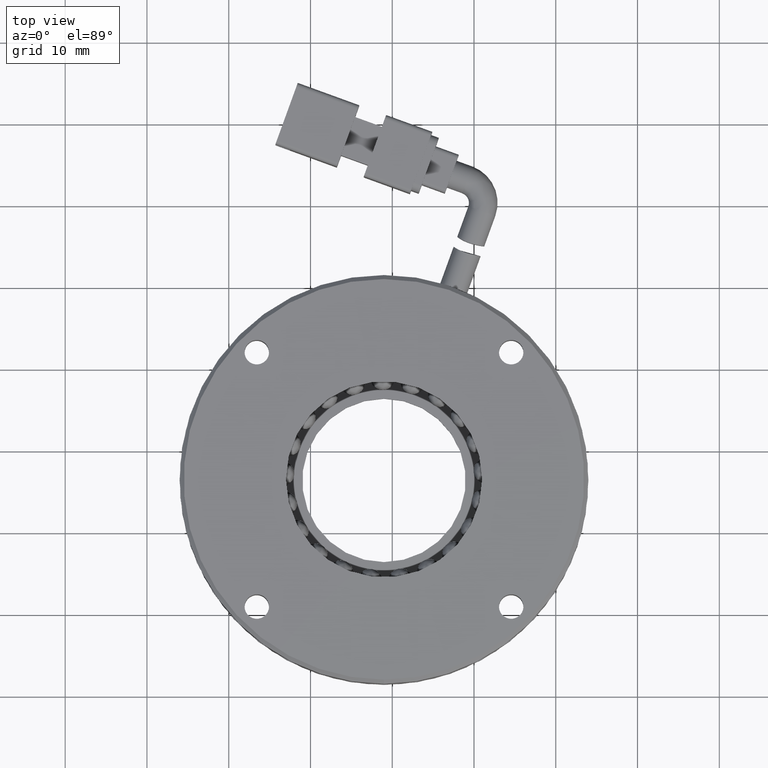
[diagram: clean part render]
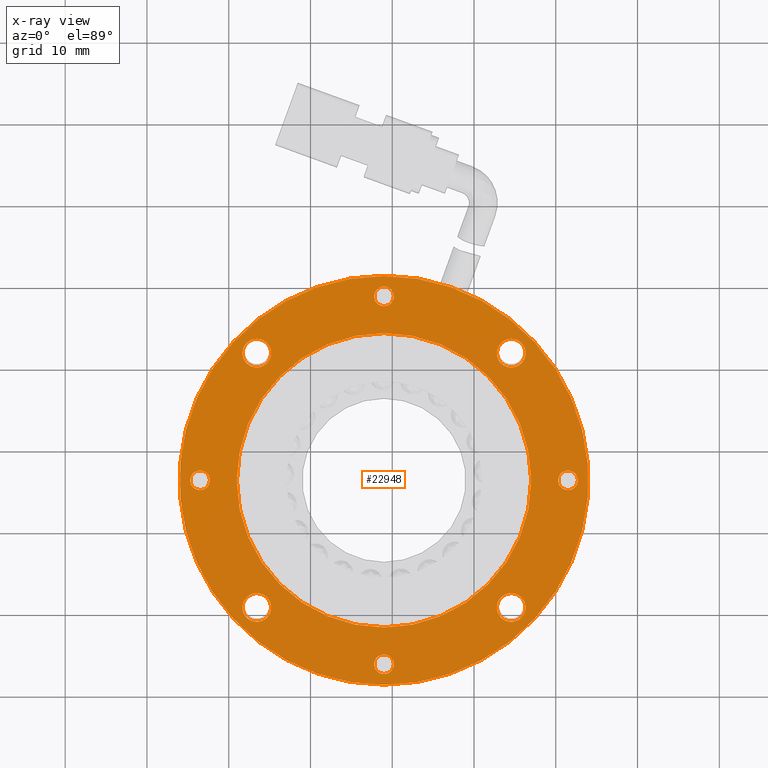
[diagram: x-ray — body ghosted, one internal face saturated and labeled with its STEP entity id]
A machine part, top view, then the same camera in x-ray: the body is ghosted and one INTERNAL B-rep face — a face not visible from any outside direction — is saturated and labeled: STEP entity #22948.
In plain terms, the highlighted planar face has unit normal (-0, -0, -1).
Its self-contained STEP definition (entity closure, byte-faithful):
#7 = AXIS2_PLACEMENT_3D ( 'NONE', #7676, #21975, #9746 ) ;
#12 = CARTESIAN_POINT ( 'NONE',  ( -121.0083944312394000, 24.46072502546472900, -3.499999999999940500 ) ) ;
#293 = CIRCLE ( 'NONE', #1928, 1.199999999999999700 ) ;
#441 = ORIENTED_EDGE ( 'NONE', *, *, #7144, .T. ) ;
#459 = CIRCLE ( 'NONE', #9071, 18.00000000000000400 ) ;
#812 = ORIENTED_EDGE ( 'NONE', *, *, #16583, .F. ) ;
#1020 = DIRECTION ( 'NONE',  ( 0.0000000000000000000, -1.000000000000000000, 0.0000000000000000000 ) ) ;
#1303 = CARTESIAN_POINT ( 'NONE',  ( -105.4520452451353800, 23.76707421156879700, -3.499999999999940500 ) ) ;
#1307 = VERTEX_POINT ( 'NONE', #17881 ) ;
#1319 = AXIS2_PLACEMENT_3D ( 'NONE', #7426, #21725, #9500 ) ;
#1321 = DIRECTION ( 'NONE',  ( 0.0000000000000000000, -1.000000000000000000, 0.0000000000000000000 ) ) ;
#1618 = VERTEX_POINT ( 'NONE', #9821 ) ;
#1740 = DIRECTION ( 'NONE',  ( 0.0000000000000000000, 1.000000000000000000, 0.0000000000000000000 ) ) ;
#1784 = CARTESIAN_POINT ( 'NONE',  ( -98.50839443123941000, 6.460725025464729900, -3.499999999999940500 ) ) ;
#1928 = AXIS2_PLACEMENT_3D ( 'NONE', #7444, #21747, #9518 ) ;
#1969 = CIRCLE ( 'NONE', #7, 25.00000000000000000 ) ;
#2053 = EDGE_LOOP ( 'NONE', ( #20877, #14480 ) ) ;
#2296 = EDGE_CURVE ( 'NONE', #6339, #21895, #19026, .T. ) ;
#2335 = ORIENTED_EDGE ( 'NONE', *, *, #4447, .T. ) ;
#2577 = CARTESIAN_POINT ( 'NONE',  ( -121.0083944312394000, 31.46072502546472900, -3.499999999999940500 ) ) ;
#2711 = CARTESIAN_POINT ( 'NONE',  ( -121.0083944312391500, -17.23927497453527000, -3.499999999999940500 ) ) ;
#2746 = CARTESIAN_POINT ( 'NONE',  ( -121.0083944312391500, -14.83927497453527200, -3.499999999999940500 ) ) ;
#3174 = CARTESIAN_POINT ( 'NONE',  ( -136.5647436173433100, -7.345624160639461700, -3.499999999999940500 ) ) ;
#3476 = CIRCLE ( 'NONE', #3803, 1.749999999999992900 ) ;
#3541 = CARTESIAN_POINT ( 'NONE',  ( -121.0083944312394800, 30.16072502546472100, -3.499999999999940500 ) ) ;
#3653 = EDGE_LOOP ( 'NONE', ( #10954, #2335 ) ) ;
#3803 = AXIS2_PLACEMENT_3D ( 'NONE', #6815, #21090, #8898 ) ;
#3845 = DIRECTION ( 'NONE',  ( 0.0000000000000000000, 1.000000000000000000, 0.0000000000000000000 ) ) ;
#3968 = CARTESIAN_POINT ( 'NONE',  ( -136.5647436173435400, 22.01707421156869400, -3.499999999999940500 ) ) ;
#3992 = FACE_BOUND ( 'NONE', #24982, .T. ) ;
#4067 = VERTEX_POINT ( 'NONE', #25816 ) ;
#4083 = CIRCLE ( 'NONE', #1319, 1.199999999999999700 ) ;
#4150 = EDGE_CURVE ( 'NONE', #8919, #11354, #8638, .T. ) ;
#4375 = DIRECTION ( 'NONE',  ( -1.278084676573917400E-047, 0.0000000000000000000, -1.000000000000000000 ) ) ;
#4447 = EDGE_CURVE ( 'NONE', #4067, #10572, #13060, .T. ) ;
#4558 = ORIENTED_EDGE ( 'NONE', *, *, #23065, .T. ) ;
#4902 = CARTESIAN_POINT ( 'NONE',  ( -121.0083944312391500, -16.03927497453527100, -3.499999999999940500 ) ) ;
#5226 = EDGE_LOOP ( 'NONE', ( #441, #5337 ) ) ;
#5332 = DIRECTION ( 'NONE',  ( -1.278084676573917400E-047, 0.0000000000000000000, -1.000000000000000000 ) ) ;
#5337 = ORIENTED_EDGE ( 'NONE', *, *, #20351, .T. ) ;
#5527 = AXIS2_PLACEMENT_3D ( 'NONE', #10043, #24308, #12096 ) ;
#5631 = AXIS2_PLACEMENT_3D ( 'NONE', #3968, #18232, #6034 ) ;
#5885 = EDGE_LOOP ( 'NONE', ( #8750, #24013 ) ) ;
#5925 = AXIS2_PLACEMENT_3D ( 'NONE', #24178, #11980, #26198 ) ;
#5954 = CARTESIAN_POINT ( 'NONE',  ( -136.5647436173435400, 22.01707421156869400, -3.499999999999940500 ) ) ;
#6034 = DIRECTION ( 'NONE',  ( 0.0000000000000000000, 1.000000000000000000, 0.0000000000000000000 ) ) ;
#6282 = EDGE_CURVE ( 'NONE', #10572, #4067, #14946, .T. ) ;
#6339 = VERTEX_POINT ( 'NONE', #1303 ) ;
#6508 = AXIS2_PLACEMENT_3D ( 'NONE', #4902, #19192, #6940 ) ;
#6815 = CARTESIAN_POINT ( 'NONE',  ( -105.4520452451351500, -9.095624160639122400, -3.499999999999940500 ) ) ;
#6940 = DIRECTION ( 'NONE',  ( 0.0000000000000000000, 1.000000000000000000, 0.0000000000000000000 ) ) ;
#7037 = VERTEX_POINT ( 'NONE', #12 ) ;
#7093 = VERTEX_POINT ( 'NONE', #22586 ) ;
#7144 = EDGE_CURVE ( 'NONE', #9882, #19770, #15220, .T. ) ;
#7150 = EDGE_LOOP ( 'NONE', ( #18600, #14754 ) ) ;
#7239 = EDGE_CURVE ( 'NONE', #13886, #18966, #11693, .T. ) ;
#7426 = CARTESIAN_POINT ( 'NONE',  ( -121.0083944312391500, -16.03927497453527100, -3.499999999999940500 ) ) ;
#7437 = EDGE_LOOP ( 'NONE', ( #11168, #25297 ) ) ;
#7444 = CARTESIAN_POINT ( 'NONE',  ( -121.0083944312394800, 28.96072502546472200, -3.499999999999940500 ) ) ;
#7544 = ORIENTED_EDGE ( 'NONE', *, *, #23631, .T. ) ;
#7676 = CARTESIAN_POINT ( 'NONE',  ( -121.0083944312394000, 6.460725025464729900, -3.499999999999940500 ) ) ;
#7725 = AXIS2_PLACEMENT_3D ( 'NONE', #5954, #20222, #8003 ) ;
#8003 = DIRECTION ( 'NONE',  ( 0.0000000000000000000, 1.000000000000000000, 0.0000000000000000000 ) ) ;
#8013 = VERTEX_POINT ( 'NONE', #8745 ) ;
#8049 = EDGE_CURVE ( 'NONE', #7093, #19529, #16728, .T. ) ;
#8183 = CARTESIAN_POINT ( 'NONE',  ( -121.0083944312394800, 27.76072502546471900, -3.499999999999940500 ) ) ;
#8456 = VERTEX_POINT ( 'NONE', #8183 ) ;
#8638 = CIRCLE ( 'NONE', #10253, 25.00000000000000000 ) ;
#8745 = CARTESIAN_POINT ( 'NONE',  ( -105.4520452451351500, -10.84562416063911500, -3.499999999999940500 ) ) ;
#8750 = ORIENTED_EDGE ( 'NONE', *, *, #22423, .T. ) ;
#8898 = DIRECTION ( 'NONE',  ( 0.0000000000000000000, 1.000000000000000000, 0.0000000000000000000 ) ) ;
#8919 = VERTEX_POINT ( 'NONE', #24743 ) ;
#8927 = DIRECTION ( 'NONE',  ( -1.278084676573917700E-047, -7.983674700015282600E-110, -1.000000000000000000 ) ) ;
#9071 = AXIS2_PLACEMENT_3D ( 'NONE', #25721, #13562, #1321 ) ;
#9186 = DIRECTION ( 'NONE',  ( -1.278084676573917400E-047, 0.0000000000000000000, -1.000000000000000000 ) ) ;
#9353 = CARTESIAN_POINT ( 'NONE',  ( -136.5647436173433100, -9.095624160639456300, -3.499999999999940500 ) ) ;
#9418 = FACE_BOUND ( 'NONE', #20887, .T. ) ;
#9500 = DIRECTION ( 'NONE',  ( 0.0000000000000000000, 1.000000000000000000, 0.0000000000000000000 ) ) ;
#9518 = DIRECTION ( 'NONE',  ( 0.0000000000000000000, 1.000000000000000000, 0.0000000000000000000 ) ) ;
#9746 = DIRECTION ( 'NONE',  ( 0.0000000000000000000, -1.000000000000000000, 0.0000000000000000000 ) ) ;
#9821 = CARTESIAN_POINT ( 'NONE',  ( -105.4520452451351500, -7.345624160639128600, -3.499999999999940500 ) ) ;
#9882 = VERTEX_POINT ( 'NONE', #24933 ) ;
#9893 = DIRECTION ( 'NONE',  ( -1.278084676573917400E-047, 0.0000000000000000000, -1.000000000000000000 ) ) ;
#10043 = CARTESIAN_POINT ( 'NONE',  ( -121.0083944312394800, 28.96072502546472200, -3.499999999999940500 ) ) ;
#10054 = FACE_BOUND ( 'NONE', #2053, .T. ) ;
#10253 = AXIS2_PLACEMENT_3D ( 'NONE', #22134, #9893, #24146 ) ;
#10403 = AXIS2_PLACEMENT_3D ( 'NONE', #17572, #5332, #19614 ) ;
#10572 = VERTEX_POINT ( 'NONE', #3174 ) ;
#10657 = CIRCLE ( 'NONE', #10403, 1.749999999999992900 ) ;
#10861 = CARTESIAN_POINT ( 'NONE',  ( -98.50839443123941000, 6.460725025464729900, -3.499999999999940500 ) ) ;
#10954 = ORIENTED_EDGE ( 'NONE', *, *, #6282, .T. ) ;
#11061 = CARTESIAN_POINT ( 'NONE',  ( -98.50839443123941000, 7.660725025464729200, -3.499999999999940500 ) ) ;
#11168 = ORIENTED_EDGE ( 'NONE', *, *, #17735, .T. ) ;
#11354 = VERTEX_POINT ( 'NONE', #2577 ) ;
#11398 = DIRECTION ( 'NONE',  ( 0.0000000000000000000, 1.000000000000000000, 0.0000000000000000000 ) ) ;
#11535 = CIRCLE ( 'NONE', #5527, 1.199999999999999700 ) ;
#11693 = CIRCLE ( 'NONE', #6508, 1.199999999999999700 ) ;
#11980 = DIRECTION ( 'NONE',  ( -1.278084676573917400E-047, 0.0000000000000000000, -1.000000000000000000 ) ) ;
#11989 = AXIS2_PLACEMENT_3D ( 'NONE', #21389, #9186, #23427 ) ;
#12096 = DIRECTION ( 'NONE',  ( 0.0000000000000000000, 1.000000000000000000, 0.0000000000000000000 ) ) ;
#12197 = CARTESIAN_POINT ( 'NONE',  ( -105.4520452451353800, 20.26707421156880800, -3.499999999999940500 ) ) ;
#12297 = AXIS2_PLACEMENT_3D ( 'NONE', #21125, #8927, #23167 ) ;
#12308 = ORIENTED_EDGE ( 'NONE', *, *, #4150, .F. ) ;
#12706 = AXIS2_PLACEMENT_3D ( 'NONE', #25423, #13249, #1020 ) ;
#12929 = DIRECTION ( 'NONE',  ( 0.0000000000000000000, 1.000000000000000000, 0.0000000000000000000 ) ) ;
#13060 = CIRCLE ( 'NONE', #11989, 1.749999999999994700 ) ;
#13249 = DIRECTION ( 'NONE',  ( 1.278084676573917400E-047, -0.0000000000000000000, 1.000000000000000000 ) ) ;
#13252 = AXIS2_PLACEMENT_3D ( 'NONE', #26135, #13979, #1740 ) ;
#13326 = VERTEX_POINT ( 'NONE', #22331 ) ;
#13562 = DIRECTION ( 'NONE',  ( 1.278084676573917400E-047, -0.0000000000000000000, 1.000000000000000000 ) ) ;
#13590 = CIRCLE ( 'NONE', #5631, 1.749999999999994700 ) ;
#13886 = VERTEX_POINT ( 'NONE', #2746 ) ;
#13979 = DIRECTION ( 'NONE',  ( -1.278084676573917400E-047, 0.0000000000000000000, -1.000000000000000000 ) ) ;
#14207 = EDGE_CURVE ( 'NONE', #21014, #13326, #17164, .T. ) ;
#14218 = FACE_BOUND ( 'NONE', #15418, .T. ) ;
#14480 = ORIENTED_EDGE ( 'NONE', *, *, #18127, .F. ) ;
#14754 = ORIENTED_EDGE ( 'NONE', *, *, #8049, .T. ) ;
#14839 = FACE_BOUND ( 'NONE', #5226, .T. ) ;
#14895 = AXIS2_PLACEMENT_3D ( 'NONE', #10861, #25101, #12929 ) ;
#14946 = CIRCLE ( 'NONE', #21132, 1.749999999999994700 ) ;
#15110 = EDGE_LOOP ( 'NONE', ( #12308, #812 ) ) ;
#15220 = CIRCLE ( 'NONE', #23909, 1.199999999999999700 ) ;
#15418 = EDGE_LOOP ( 'NONE', ( #4558, #17653 ) ) ;
#15479 = FACE_OUTER_BOUND ( 'NONE', #15110, .T. ) ;
#15544 = ORIENTED_EDGE ( 'NONE', *, *, #7239, .T. ) ;
#16069 = DIRECTION ( 'NONE',  ( -1.278084676573917400E-047, 0.0000000000000000000, -1.000000000000000000 ) ) ;
#16174 = ORIENTED_EDGE ( 'NONE', *, *, #19245, .T. ) ;
#16278 = AXIS2_PLACEMENT_3D ( 'NONE', #1784, #16069, #3845 ) ;
#16583 = EDGE_CURVE ( 'NONE', #11354, #8919, #1969, .T. ) ;
#16615 = CARTESIAN_POINT ( 'NONE',  ( -143.5083944312394000, 6.460725025464570100, -3.499999999999940500 ) ) ;
#16728 = CIRCLE ( 'NONE', #14895, 1.199999999999999700 ) ;
#17092 = EDGE_CURVE ( 'NONE', #19529, #7093, #17592, .T. ) ;
#17164 = CIRCLE ( 'NONE', #7725, 1.749999999999994700 ) ;
#17572 = CARTESIAN_POINT ( 'NONE',  ( -105.4520452451351500, -9.095624160639122400, -3.499999999999940500 ) ) ;
#17586 = EDGE_CURVE ( 'NONE', #8456, #24061, #293, .T. ) ;
#17592 = CIRCLE ( 'NONE', #16278, 1.199999999999999700 ) ;
#17653 = ORIENTED_EDGE ( 'NONE', *, *, #23442, .T. ) ;
#17735 = EDGE_CURVE ( 'NONE', #24061, #8456, #11535, .T. ) ;
#17881 = CARTESIAN_POINT ( 'NONE',  ( -121.0083944312394000, -11.53927497453527300, -3.499999999999940500 ) ) ;
#17920 = DIRECTION ( 'NONE',  ( 0.0000000000000000000, 1.000000000000000000, 0.0000000000000000000 ) ) ;
#18012 = DIRECTION ( 'NONE',  ( -1.278084676573917400E-047, 0.0000000000000000000, -1.000000000000000000 ) ) ;
#18050 = AXIS2_PLACEMENT_3D ( 'NONE', #18182, #18012, #17920 ) ;
#18127 = EDGE_CURVE ( 'NONE', #7037, #1307, #19827, .T. ) ;
#18182 = CARTESIAN_POINT ( 'NONE',  ( -105.4520452451353800, 22.01707421156880100, -3.499999999999940500 ) ) ;
#18232 = DIRECTION ( 'NONE',  ( -1.278084676573917400E-047, 0.0000000000000000000, -1.000000000000000000 ) ) ;
#18600 = ORIENTED_EDGE ( 'NONE', *, *, #17092, .T. ) ;
#18656 = DIRECTION ( 'NONE',  ( 0.0000000000000000000, 1.000000000000000000, 0.0000000000000000000 ) ) ;
#18966 = VERTEX_POINT ( 'NONE', #2711 ) ;
#19026 = CIRCLE ( 'NONE', #18050, 1.749999999999994700 ) ;
#19192 = DIRECTION ( 'NONE',  ( -1.278084676573917400E-047, 0.0000000000000000000, -1.000000000000000000 ) ) ;
#19245 = EDGE_CURVE ( 'NONE', #21895, #6339, #24760, .T. ) ;
#19529 = VERTEX_POINT ( 'NONE', #11061 ) ;
#19614 = DIRECTION ( 'NONE',  ( 0.0000000000000000000, 1.000000000000000000, 0.0000000000000000000 ) ) ;
#19623 = FACE_BOUND ( 'NONE', #3653, .T. ) ;
#19770 = VERTEX_POINT ( 'NONE', #24048 ) ;
#19827 = CIRCLE ( 'NONE', #12706, 18.00000000000000400 ) ;
#20222 = DIRECTION ( 'NONE',  ( -1.278084676573917400E-047, 0.0000000000000000000, -1.000000000000000000 ) ) ;
#20271 = FACE_BOUND ( 'NONE', #7437, .T. ) ;
#20351 = EDGE_CURVE ( 'NONE', #19770, #9882, #24332, .T. ) ;
#20877 = ORIENTED_EDGE ( 'NONE', *, *, #23081, .F. ) ;
#20887 = EDGE_LOOP ( 'NONE', ( #15544, #7544 ) ) ;
#21014 = VERTEX_POINT ( 'NONE', #24871 ) ;
#21090 = DIRECTION ( 'NONE',  ( -1.278084676573917400E-047, 0.0000000000000000000, -1.000000000000000000 ) ) ;
#21125 = CARTESIAN_POINT ( 'NONE',  ( -121.0083944312394000, 6.460725025464729900, -3.499999999999940500 ) ) ;
#21132 = AXIS2_PLACEMENT_3D ( 'NONE', #9353, #23592, #11398 ) ;
#21389 = CARTESIAN_POINT ( 'NONE',  ( -136.5647436173433100, -9.095624160639456300, -3.499999999999940500 ) ) ;
#21725 = DIRECTION ( 'NONE',  ( -1.278084676573917400E-047, 0.0000000000000000000, -1.000000000000000000 ) ) ;
#21747 = DIRECTION ( 'NONE',  ( -1.278084676573917400E-047, 0.0000000000000000000, -1.000000000000000000 ) ) ;
#21895 = VERTEX_POINT ( 'NONE', #12197 ) ;
#21975 = DIRECTION ( 'NONE',  ( -1.278084676573917400E-047, 0.0000000000000000000, -1.000000000000000000 ) ) ;
#22134 = CARTESIAN_POINT ( 'NONE',  ( -121.0083944312394000, 6.460725025464729900, -3.499999999999940500 ) ) ;
#22331 = CARTESIAN_POINT ( 'NONE',  ( -136.5647436173435400, 23.76707421156868700, -3.499999999999940500 ) ) ;
#22423 = EDGE_CURVE ( 'NONE', #13326, #21014, #13590, .T. ) ;
#22586 = CARTESIAN_POINT ( 'NONE',  ( -98.50839443123941000, 5.260725025464729800, -3.499999999999940500 ) ) ;
#22948 = ADVANCED_FACE ( 'NONE', ( #15479, #10054, #25652, #20271, #14839, #9418, #3992, #25014, #19623, #14218 ), #25106, .F. ) ;
#23065 = EDGE_CURVE ( 'NONE', #1618, #8013, #10657, .T. ) ;
#23081 = EDGE_CURVE ( 'NONE', #1307, #7037, #459, .T. ) ;
#23167 = DIRECTION ( 'NONE',  ( -1.278084676573917700E-047, 1.000000000000000000, 1.633500440493055000E-094 ) ) ;
#23427 = DIRECTION ( 'NONE',  ( 0.0000000000000000000, 1.000000000000000000, 0.0000000000000000000 ) ) ;
#23442 = EDGE_CURVE ( 'NONE', #8013, #1618, #3476, .T. ) ;
#23592 = DIRECTION ( 'NONE',  ( -1.278084676573917400E-047, 0.0000000000000000000, -1.000000000000000000 ) ) ;
#23631 = EDGE_CURVE ( 'NONE', #18966, #13886, #4083, .T. ) ;
#23909 = AXIS2_PLACEMENT_3D ( 'NONE', #16615, #4375, #18656 ) ;
#24013 = ORIENTED_EDGE ( 'NONE', *, *, #14207, .T. ) ;
#24048 = CARTESIAN_POINT ( 'NONE',  ( -143.5083944312394000, 5.260725025464570800, -3.499999999999940500 ) ) ;
#24061 = VERTEX_POINT ( 'NONE', #3541 ) ;
#24146 = DIRECTION ( 'NONE',  ( 0.0000000000000000000, -1.000000000000000000, 0.0000000000000000000 ) ) ;
#24178 = CARTESIAN_POINT ( 'NONE',  ( -105.4520452451353800, 22.01707421156880100, -3.499999999999940500 ) ) ;
#24308 = DIRECTION ( 'NONE',  ( -1.278084676573917400E-047, 0.0000000000000000000, -1.000000000000000000 ) ) ;
#24332 = CIRCLE ( 'NONE', #13252, 1.199999999999999700 ) ;
#24743 = CARTESIAN_POINT ( 'NONE',  ( -121.0083944312394000, -18.53927497453527500, -3.499999999999940500 ) ) ;
#24753 = ORIENTED_EDGE ( 'NONE', *, *, #2296, .T. ) ;
#24760 = CIRCLE ( 'NONE', #5925, 1.749999999999994700 ) ;
#24871 = CARTESIAN_POINT ( 'NONE',  ( -136.5647436173435400, 20.26707421156870100, -3.499999999999940500 ) ) ;
#24933 = CARTESIAN_POINT ( 'NONE',  ( -143.5083944312394000, 7.660725025464570200, -3.499999999999940500 ) ) ;
#24982 = EDGE_LOOP ( 'NONE', ( #24753, #16174 ) ) ;
#25014 = FACE_BOUND ( 'NONE', #5885, .T. ) ;
#25101 = DIRECTION ( 'NONE',  ( -1.278084676573917400E-047, 0.0000000000000000000, -1.000000000000000000 ) ) ;
#25106 = PLANE ( 'NONE',  #12297 ) ;
#25297 = ORIENTED_EDGE ( 'NONE', *, *, #17586, .T. ) ;
#25423 = CARTESIAN_POINT ( 'NONE',  ( -121.0083944312394000, 6.460725025464729900, -3.499999999999940500 ) ) ;
#25652 = FACE_BOUND ( 'NONE', #7150, .T. ) ;
#25721 = CARTESIAN_POINT ( 'NONE',  ( -121.0083944312394000, 6.460725025464729900, -3.499999999999940500 ) ) ;
#25816 = CARTESIAN_POINT ( 'NONE',  ( -136.5647436173433100, -10.84562416063945100, -3.499999999999940500 ) ) ;
#26135 = CARTESIAN_POINT ( 'NONE',  ( -143.5083944312394000, 6.460725025464570100, -3.499999999999940500 ) ) ;
#26198 = DIRECTION ( 'NONE',  ( 0.0000000000000000000, 1.000000000000000000, 0.0000000000000000000 ) ) ;